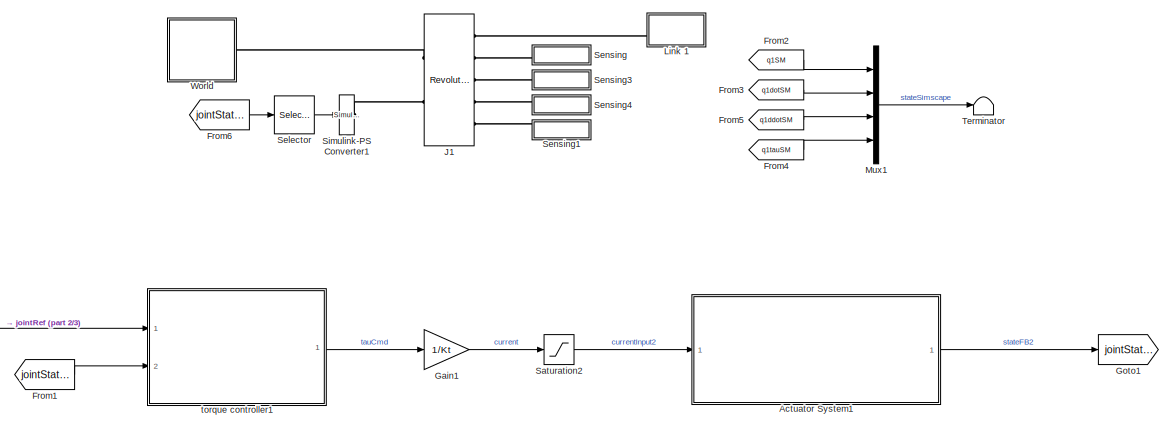
[diagram: root canvas - part 1/3, top center region]
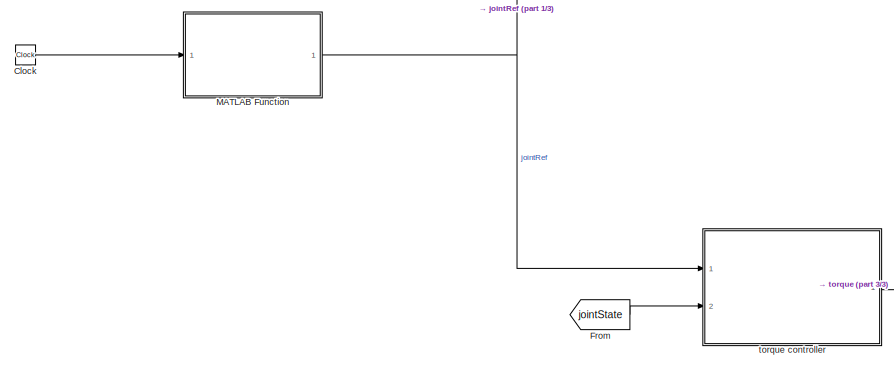
[diagram: root canvas - part 2/3, bottom left region]
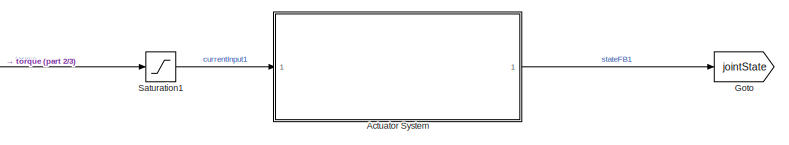
[diagram: root canvas - part 3/3, bottom right region]
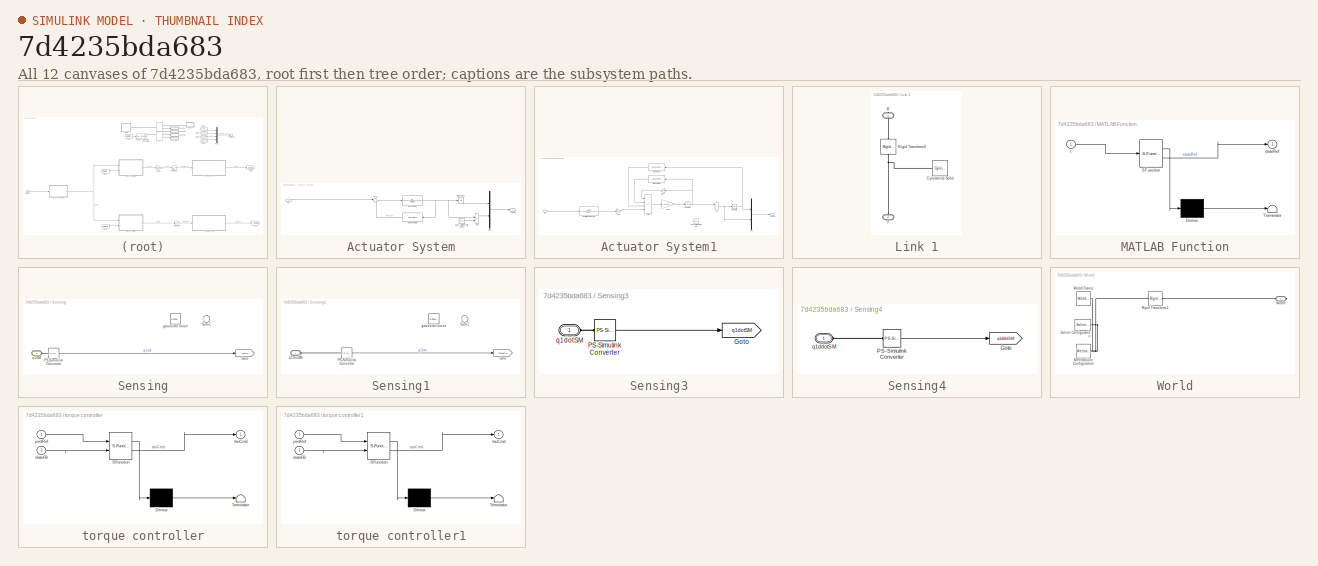
[diagram: thumbnail index - all 12 canvases of the model, root first then tree order]
MODEL slx_7d4235bda683
KIND model
CONFIG AbsTol = auto
CONFIG EnableMultiTasking = off
CONFIG FixedStep = dt
CONFIG MaxStep = auto
CONFIG MinStep = auto
CONFIG RelTol = 1e-3
CONFIG SampleTimeConstraint = Unconstrained
CONFIG SolverName = ode5
CONFIG StartTime = 0.0
CONFIG StopTime = runT
BLOCK [SubSystem] Actuator System
  Commented = on
  Ports = [1, 1]
  RequestExecContextInheritance = off
BLOCK [Sum] Actuator System/Add
  IconShape = rectangular
  Ports = [2, 1]
BLOCK [Reference] Actuator System/Band-Limited White Noise  REF=simulink/Sources/Band-Limited
White Noise
  Ports = [0, 1]
  SourceBlock = simulink/Sources/Band-Limited\nWhite Noise
  SourceProductBaseCode = SL
  SourceType = Band-Limited White Noise.
BLOCK [Inport] Actuator System/In1
BLOCK [Integrator] Actuator System/Integrator1
  Ports = [1, 1]
BLOCK [Mux] Actuator System/Mux
  DisplayOption = bar
  Inputs = 2
  Ports = [2, 1]
BLOCK [Sum] Actuator System/Sum2
  Inputs = |+-
  Ports = [2, 1]
BLOCK [Outport] Actuator System/jointState
BLOCK [MATLABFcn] Actuator System/stribeck friction
  MATLABFcn = stribeckFriction(u)
  Ports = [1, 1]
BLOCK [TransferFcn] Actuator System/tau-vel TF1
  Denominator = [Jm Bm]
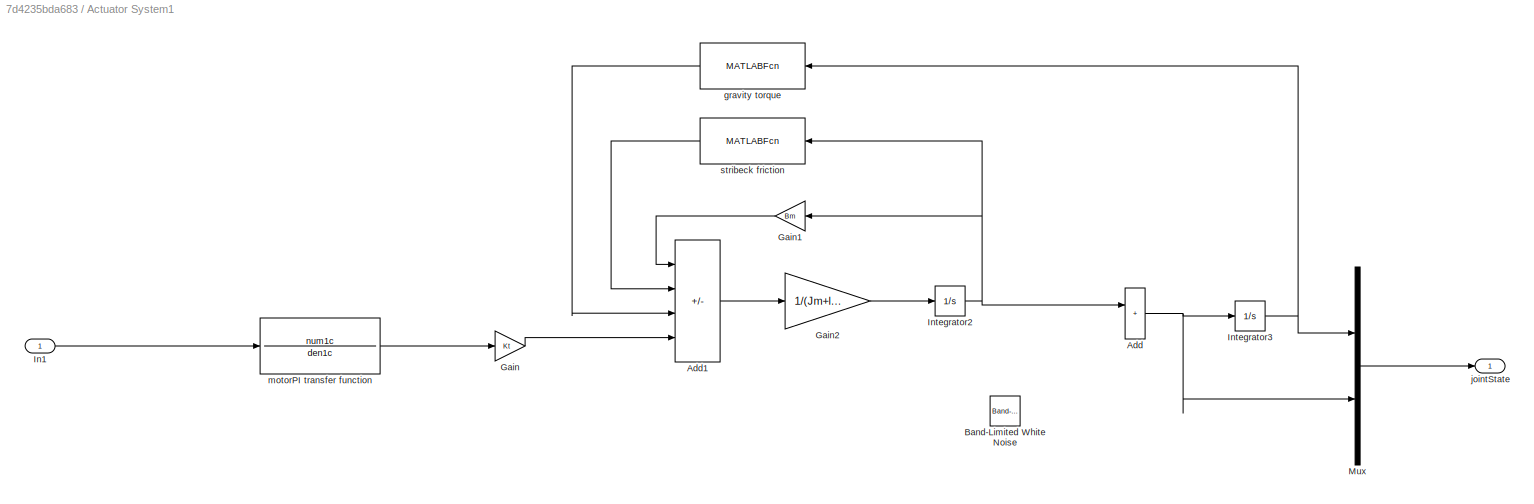
BLOCK [SubSystem] Actuator System1
  Ports = [1, 1]
  RequestExecContextInheritance = off
BLOCK [Sum] Actuator System1/Add
  IconShape = rectangular
  Ports = [2, 1]
BLOCK [Sum] Actuator System1/Add1
  IconShape = rectangular
  Inputs = --++
  Ports = [4, 1]
BLOCK [Reference] Actuator System1/Band-Limited White Noise  REF=simulink/Sources/Band-Limited
White Noise
  Ports = [0, 1]
  SourceBlock = simulink/Sources/Band-Limited\nWhite Noise
  SourceProductBaseCode = SL
  SourceType = Band-Limited White Noise.
BLOCK [Gain] Actuator System1/Gain
  Gain = Kt
BLOCK [Gain] Actuator System1/Gain1
  Gain = Bm
  NameLocation = top
BLOCK [Gain] Actuator System1/Gain2
  Gain = 1/(Jm+linkJ)
BLOCK [Inport] Actuator System1/In1
BLOCK [Integrator] Actuator System1/Integrator2
  Ports = [1, 1]
BLOCK [Integrator] Actuator System1/Integrator3
  Ports = [1, 1]
BLOCK [Mux] Actuator System1/Mux
  DisplayOption = bar
  Inputs = 2
  Ports = [2, 1]
BLOCK [MATLABFcn] Actuator System1/gravity torque
  MATLABFcn = 0.5*linkM*g*linkL*sin(u)
  Ports = [1, 1]
BLOCK [Outport] Actuator System1/jointState
BLOCK [TransferFcn] Actuator System1/motorPI transfer function
  Denominator = den1c
  Numerator = num1c
BLOCK [MATLABFcn] Actuator System1/stribeck friction
  MATLABFcn = stribeckFriction(u)
  Ports = [1, 1]
BLOCK [Clock] Clock
BLOCK [From] From
  Commented = on
  GotoTag = jointState
BLOCK [From] From1
  GotoTag = jointState1
BLOCK [From] From2
  GotoTag = q1SM
  TagVisibility = global
BLOCK [From] From3
  GotoTag = q1dotSM
  TagVisibility = global
BLOCK [From] From4
  GotoTag = q1tauSM
  TagVisibility = global
BLOCK [From] From5
  GotoTag = q1ddotSM
  TagVisibility = global
BLOCK [From] From6
  GotoTag = jointState1
BLOCK [Gain] Gain1
  Gain = 1/Kt
BLOCK [Goto] Goto
  Commented = on
  GotoTag = jointState
BLOCK [Goto] Goto1
  GotoTag = jointState1
BLOCK [Reference] J1  REF=sm_lib/Joints/Revolute Joint
  Ports = [0, 0, 0, 0, 0, 2, 5]
  SourceBlock = sm_lib/Joints/Revolute Joint
  SourceProductBaseCode = MS
  SourceType = Revolute Joint
BLOCK [SubSystem] Link 1
  NameLocation = right
  Ports = [0, 0, 0, 0, 0, 1, 1]
  RequestExecContextInheritance = off
  Tag = CustomStyle
BLOCK [PMIOPort] Link 1/B
  NameLocation = right
  Side = Right
BLOCK [Reference] Link 1/Cylindrical Solid  REF=sm_lib/Body Elements/Cylindrical Solid
  NameLocation = top
  Ports = [0, 0, 0, 0, 0, 1, 1]
  SourceBlock = sm_lib/Body Elements/Cylindrical Solid
  SourceProductBaseCode = MS
  SourceType = Cylindrical Solid
BLOCK [PMIOPort] Link 1/F
  NameLocation = right
  Port = 2
  Side = Left
BLOCK [Reference] Link 1/Rigid Transform2  REF=sm_lib/Frames and
Transforms/Rigid
Transform
  NameLocation = left
  Ports = [0, 0, 0, 0, 0, 1, 1]
  SourceBlock = sm_lib/Frames and\nTransforms/Rigid\nTransform
  SourceProductBaseCode = MS
  SourceType = Rigid\nTransform
BLOCK [SubSystem] MATLAB Function
  ErrorFcn = Stateflow.Translate.translate
  PermitHierarchicalResolution = ExplicitOnly
  Ports = [1, 1]
  RequestExecContextInheritance = off
  SFBlockType = MATLAB Function
  TreatAsAtomicUnit = on
BLOCK [Demux] MATLAB Function/ Demux 
  Outputs = 1
  Ports = [1, 1]
BLOCK [S-Function] MATLAB Function/ SFunction 
  EnableBusSupport = on
  FunctionName = sf_sfun
  PortCounts = [1 2]
  Ports = [1, 2]
  SFcnIsStateOwnerBlock = off
  SFunctionDeploymentMode = off
  Tag = Stateflow S-Function 3
BLOCK [Terminator] MATLAB Function/ Terminator 
BLOCK [Outport] MATLAB Function/stateRef
BLOCK [Inport] MATLAB Function/t
BLOCK [Mux] Mux1
  DisplayOption = bar
  Ports = [4, 1]
BLOCK [Saturate] Saturation1
  Commented = on
  LowerLimit = -tauMax
  UpperLimit = tauMax
BLOCK [Saturate] Saturation2
  LowerLimit = -iMax
  UpperLimit = iMax
BLOCK [Selector] Selector
  IndexOptions = Index vector (dialog)
  Indices = [1]
  InputPortWidth = 2
  OutputSizes = 1
  Ports = [1, 1]
BLOCK [SubSystem] Sensing
  Ports = [0, 0, 0, 0, 0, 1]
  RequestExecContextInheritance = off
BLOCK [Goto] Sensing/Goto
  GotoTag = q1SM
  TagVisibility = global
BLOCK [Reference] Sensing/PS-Simulink Converter  REF=nesl_utility/PS-Simulink
Converter
  Ports = [0, 1, 0, 0, 0, 1]
  SourceBlock = nesl_utility/PS-Simulink\nConverter
  SourceProductBaseCode = PW,SS
  SourceType = PS-Simulink\nConverter
BLOCK [Sum] Sensing/Sum1
  Commented = on
  Inputs = ++|
  Ports = [2, 1]
BLOCK [RandomNumber] Sensing/gaussian noise
  Commented = on
  SampleTime = dt
  Seed = 41
  Variance = 0.0001
BLOCK [PMIOPort] Sensing/q1SM
  Side = Left
BLOCK [SubSystem] Sensing1
  Ports = [0, 0, 0, 0, 0, 1]
  RequestExecContextInheritance = off
BLOCK [Goto] Sensing1/Goto
  GotoTag = q1tauSM
  TagVisibility = global
BLOCK [Reference] Sensing1/PS-Simulink Converter  REF=nesl_utility/PS-Simulink
Converter
  Ports = [0, 1, 0, 0, 0, 1]
  SourceBlock = nesl_utility/PS-Simulink\nConverter
  SourceProductBaseCode = PW,SS
  SourceType = PS-Simulink\nConverter
BLOCK [Sum] Sensing1/Sum1
  Commented = on
  Inputs = ++|
  Ports = [2, 1]
BLOCK [RandomNumber] Sensing1/gaussian noise
  Commented = on
  SampleTime = dt
  Seed = 41
  Variance = 0.0001
BLOCK [PMIOPort] Sensing1/q1tauSM
  Side = Left
BLOCK [SubSystem] Sensing3
  Ports = [0, 0, 0, 0, 0, 1]
  RequestExecContextInheritance = off
BLOCK [Goto] Sensing3/Goto
  GotoTag = q1dotSM
  TagVisibility = global
BLOCK [Reference] Sensing3/PS-Simulink Converter  REF=nesl_utility/PS-Simulink
Converter
  Ports = [0, 1, 0, 0, 0, 1]
  SourceBlock = nesl_utility/PS-Simulink\nConverter
  SourceProductBaseCode = PW,SS
  SourceType = PS-Simulink\nConverter
BLOCK [PMIOPort] Sensing3/q1dotSM
  NameLocation = top
  Side = Left
BLOCK [SubSystem] Sensing4
  Ports = [0, 0, 0, 0, 0, 1]
  RequestExecContextInheritance = off
BLOCK [Goto] Sensing4/Goto
  GotoTag = q1ddotSM
  TagVisibility = global
BLOCK [Reference] Sensing4/PS-Simulink Converter  REF=nesl_utility/PS-Simulink
Converter
  Ports = [0, 1, 0, 0, 0, 1]
  SourceBlock = nesl_utility/PS-Simulink\nConverter
  SourceProductBaseCode = PW,SS
  SourceType = PS-Simulink\nConverter
BLOCK [PMIOPort] Sensing4/q1ddotSM
  Side = Left
BLOCK [Reference] Simulink-PS Converter1  REF=nesl_utility/Simulink-PS
Converter
  Ports = [1, 0, 0, 0, 0, 0, 1]
  SourceBlock = nesl_utility/Simulink-PS\nConverter
  SourceProductBaseCode = PW,SS
  SourceType = Simulink-PS\nConverter
BLOCK [Terminator] Terminator
BLOCK [SubSystem] World
  Ports = [0, 0, 0, 0, 0, 0, 1]
  RequestExecContextInheritance = off
BLOCK [Reference] World/Mechanism Configuration  REF=sm_lib/Utilities/Mechanism
Configuration
  Ports = [0, 0, 0, 0, 0, 0, 1]
  SourceBlock = sm_lib/Utilities/Mechanism\nConfiguration
  SourceProductBaseCode = MS
  SourceType = Mechanism\nConfiguration
BLOCK [Reference] World/Rigid Transform1  REF=sm_lib/Frames and
Transforms/Rigid
Transform
  Ports = [0, 0, 0, 0, 0, 1, 1]
  SourceBlock = sm_lib/Frames and\nTransforms/Rigid\nTransform
  SourceProductBaseCode = MS
  SourceType = Rigid\nTransform
BLOCK [Reference] World/Solver Configuration  REF=nesl_utility/Solver
Configuration
  Ports = [0, 0, 0, 0, 0, 0, 1]
  SourceBlock = nesl_utility/Solver\nConfiguration
  SourceProductBaseCode = PW,SS
  SourceType = Solver\nConfiguration
BLOCK [PMIOPort] World/World
  Side = Right
BLOCK [Reference] World/World Frame  REF=sm_lib/Frames and
Transforms/World Frame
  NameLocation = top
  Ports = [0, 0, 0, 0, 0, 0, 1]
  SourceBlock = sm_lib/Frames and\nTransforms/World Frame
  SourceProductBaseCode = MS
  SourceType = World Frame
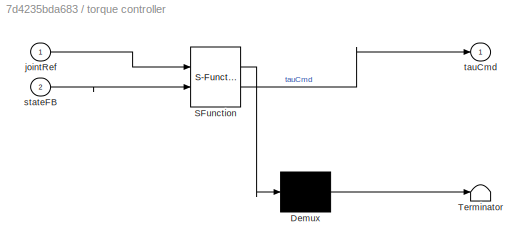
BLOCK [SubSystem] torque controller
  Commented = on
  ErrorFcn = Stateflow.Translate.translate
  PermitHierarchicalResolution = ExplicitOnly
  Ports = [2, 1]
  RequestExecContextInheritance = off
  SFBlockType = MATLAB Function
  TreatAsAtomicUnit = on
BLOCK [Demux] torque controller/ Demux 
  Outputs = 1
  Ports = [1, 1]
BLOCK [S-Function] torque controller/ SFunction 
  EnableBusSupport = on
  FunctionName = sf_sfun
  Parameters = simPara
  PortCounts = [2 2]
  Ports = [2, 2]
  SFcnIsStateOwnerBlock = off
  SFunctionDeploymentMode = off
  Tag = Stateflow S-Function 2
BLOCK [Terminator] torque controller/ Terminator 
BLOCK [Inport] torque controller/jointRef
BLOCK [Inport] torque controller/stateFB
  Port = 2
BLOCK [Outport] torque controller/tauCmd
BLOCK [SubSystem] torque controller1
  ErrorFcn = Stateflow.Translate.translate
  PermitHierarchicalResolution = ExplicitOnly
  Ports = [2, 1]
  RequestExecContextInheritance = off
  SFBlockType = MATLAB Function
  TreatAsAtomicUnit = on
BLOCK [Demux] torque controller1/ Demux 
  Outputs = 1
  Ports = [1, 1]
BLOCK [S-Function] torque controller1/ SFunction 
  EnableBusSupport = on
  FunctionName = sf_sfun
  Parameters = simPara
  PortCounts = [2 2]
  Ports = [2, 2]
  SFcnIsStateOwnerBlock = off
  SFunctionDeploymentMode = off
  Tag = Stateflow S-Function 1
BLOCK [Terminator] torque controller1/ Terminator 
BLOCK [Inport] torque controller1/jointRef
BLOCK [Inport] torque controller1/stateFB
  Port = 2
BLOCK [Outport] torque controller1/tauCmd
LINE Actuator System/Add:1 -> Actuator System/Mux:2
LINE Actuator System/Band-Limited White Noise:1 -> Actuator System/Add:2
LINE Actuator System/In1:1 -> Actuator System/Sum2:1
LINE Actuator System/Integrator1:1 -> Actuator System/Mux:1
LINE Actuator System/Mux:1 -> Actuator System/jointState:1
LINE Actuator System/Sum2:1 -> Actuator System/tau-vel TF1:1
LINE Actuator System/stribeck friction:1 -> Actuator System/Sum2:2
NET Actuator System/tau-vel TF1:1 -> Actuator System/Add:1, Actuator System/Integrator1:1, Actuator System/stribeck friction:1
LINE Actuator System1/Add1:1 -> Actuator System1/Gain2:1
NET Actuator System1/Add:1 -> Actuator System1/Integrator3:1, Actuator System1/Mux:2
LINE Actuator System1/Gain1:1 -> Actuator System1/Add1:1
LINE Actuator System1/Gain2:1 -> Actuator System1/Integrator2:1
LINE Actuator System1/Gain:1 -> Actuator System1/Add1:4
LINE Actuator System1/In1:1 -> Actuator System1/motorPI transfer function:1
NET Actuator System1/Integrator2:1 -> Actuator System1/Add:1, Actuator System1/Gain1:1, Actuator System1/stribeck friction:1
NET Actuator System1/Integrator3:1 -> Actuator System1/Mux:1, Actuator System1/gravity torque:1
LINE Actuator System1/Mux:1 -> Actuator System1/jointState:1
LINE Actuator System1/gravity torque:1 -> Actuator System1/Add1:3
LINE Actuator System1/motorPI transfer function:1 -> Actuator System1/Gain:1
LINE Actuator System1/stribeck friction:1 -> Actuator System1/Add1:2
LINE Actuator System1:1 -> Goto1:1
LINE Actuator System:1 -> Goto:1
LINE Clock:1 -> MATLAB Function:1
LINE From1:1 -> torque controller1:2
LINE From2:1 -> Mux1:1
LINE From3:1 -> Mux1:2
LINE From4:1 -> Mux1:4
LINE From5:1 -> Mux1:3
LINE From6:1 -> Selector:1
LINE From:1 -> torque controller:2
LINE Gain1:1 -> Saturation2:1
NET MATLAB Function:1 -> torque controller1:1, torque controller:1
LINE Mux1:1 -> Terminator:1
LINE Saturation1:1 -> Actuator System:1
LINE Saturation2:1 -> Actuator System1:1
LINE Selector:1 -> Simulink-PS Converter1:1
LINE Sensing/PS-Simulink Converter:1 -> Sensing/Goto:1
LINE Sensing1/PS-Simulink Converter:1 -> Sensing1/Goto:1
LINE Sensing3/PS-Simulink Converter:1 -> Sensing3/Goto:1
LINE Sensing4/PS-Simulink Converter:1 -> Sensing4/Goto:1
LINE torque controller1:1 -> Gain1:1
LINE torque controller:1 -> Saturation1:1
PLINE J1:LConn1 -- World:RConn1
PLINE J1:LConn2 -- Simulink-PS Converter1:RConn1
PLINE J1:RConn1 -- Link 1:RConn1
PLINE J1:RConn2 -- Sensing:LConn1
PLINE J1:RConn3 -- Sensing3:LConn1
PLINE J1:RConn4 -- Sensing4:LConn1
PLINE J1:RConn5 -- Sensing1:LConn1
PLINE Link 1/B:RConn1 -- Link 1/Rigid Transform2:LConn1
PNET net1: Link 1/Cylindrical Solid:LConn1 -- Link 1/F:RConn1 -- Link 1/Rigid Transform2:RConn1
PLINE Sensing/PS-Simulink Converter:LConn1 -- Sensing/q1SM:RConn1
PLINE Sensing1/PS-Simulink Converter:LConn1 -- Sensing1/q1tauSM:RConn1
PLINE Sensing3/PS-Simulink Converter:LConn1 -- Sensing3/q1dotSM:RConn1
PLINE Sensing4/PS-Simulink Converter:LConn1 -- Sensing4/q1ddotSM:RConn1
PNET net2: World/Mechanism Configuration:RConn1 -- World/Rigid Transform1:LConn1 -- World/Solver Configuration:RConn1 -- World/World Frame:RConn1
PLINE World/Rigid Transform1:RConn1 -- World/World:RConn1
note: NET lines group one-source signal fan-out (src -> all destinations, sorted); 1:1 wires keep LINE; PNET lines group multi-terminal physical nets as a canonical sorted terminal list (undirected conserving connections); 2-terminal nets keep the pairwise PLINE form
CHART torque controller1 states=1 transitions=1
  STATE_LABEL 'eML_blk_kernel()'
  STATE_LABEL 'SCRIPT:\nfunction tauCmd = fcn(jointRef, stateFB, simPara)\n\nqRef    = jointRef(1);\nqdRef   = jointRef(2);\nqddRef  = jointRef(3);\nqFB     = stateFB(1);\nqdFB    = stateFB(2);\n\nJm = simPara.Jm;\nBm = simPara.Bm;\nkp = simPara.kp;\nkd = simPara.kd;\ng = simPara.gravity(3);\nlinkL = simPara.linkL;\nlinkM = simPara.linkM;\nlinkJ = simPara.linkJ;\n\nfriTorqueFFD = stribeckFriction(qdFB);\ngravityTorque = - 0.5 * li...<+257ch>'
CHART torque controller states=1 transitions=1
  STATE_LABEL 'eML_blk_kernel()'
  STATE_LABEL 'SCRIPT:\nfunction tauCmd = fcn(jointRef, stateFB, simPara)\n\nqRef    = jointRef(1);\nqdRef   = jointRef(2);\nqddRef  = jointRef(3);\nqFB     = stateFB(1);\nqdFB    = stateFB(2);\n\nJm = simPara.Jm;\nBm = simPara.Bm;\nkp = simPara.kp;\nkd = simPara.kd;\n\nfriTorqueFFD = stribeckFriction(qdFB);\n\nqError = qRef - qFB;\nqdError = qdRef - qdFB;\n\nfeedbackTorque = kp * qError + kd * qdError;\nfeedforwardTorque = friTorq...<+113ch>'
CHART MATLAB Function states=1 transitions=1
  STATE_LABEL 'eML_blk_kernel()'
  STATE_LABEL 'SCRIPT:\nfunction stateRef = fcn(t)\n\nA = pi/2;\nT = 2;\nk = 2*pi/T;\n\nq   = +A * sin(k*t);\nqd  = +A * cos(k*t) * k;\nqdd = -A * sin(k*t) * k * k;\n\nstateRef = [q;qd;qdd];'
CHART  states=0 transitions=0
CHART  states=0 transitions=0
CHART  states=0 transitions=0
